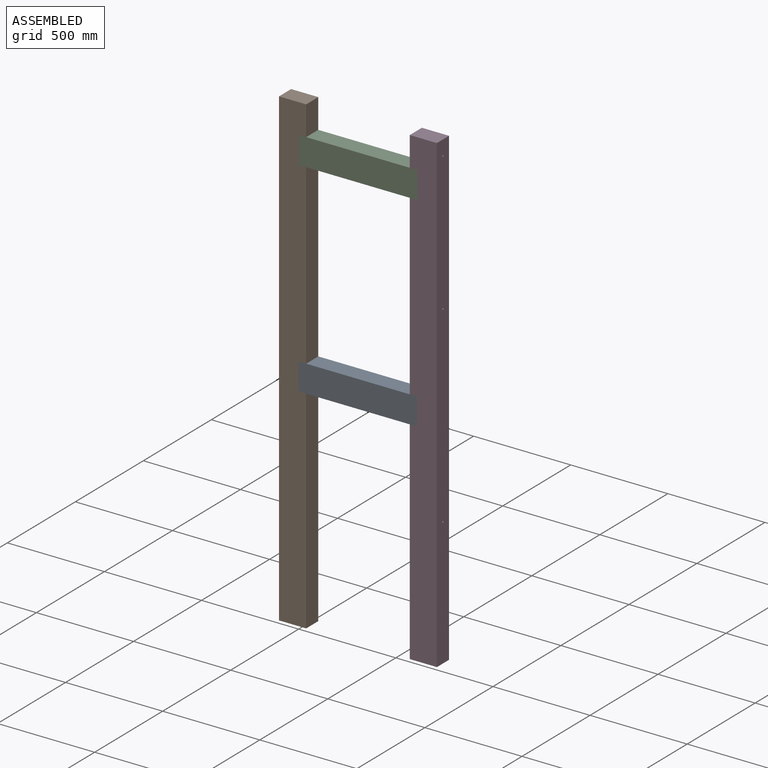
[diagram: assembled view]
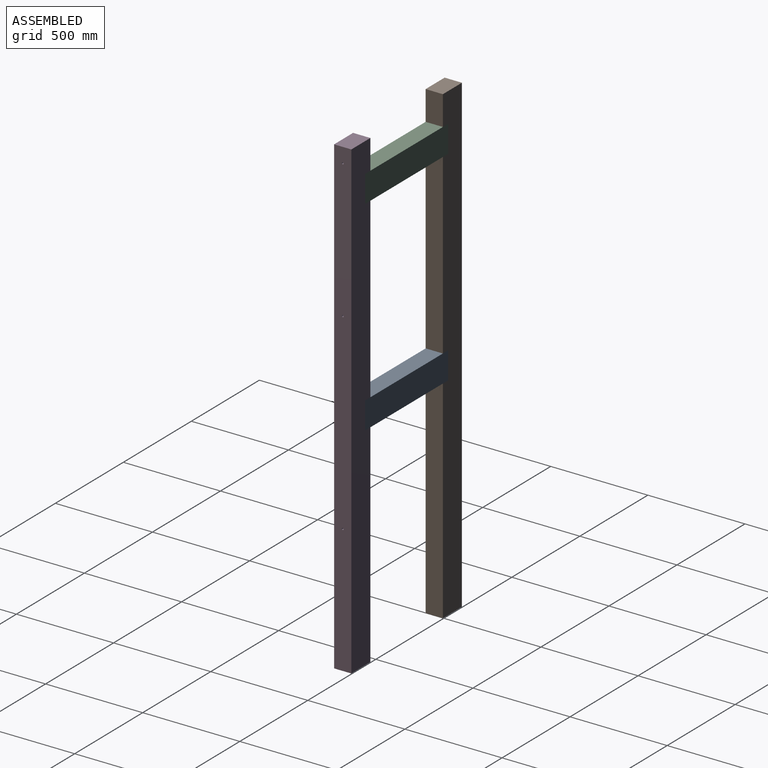
[diagram: assembled view, second angle]
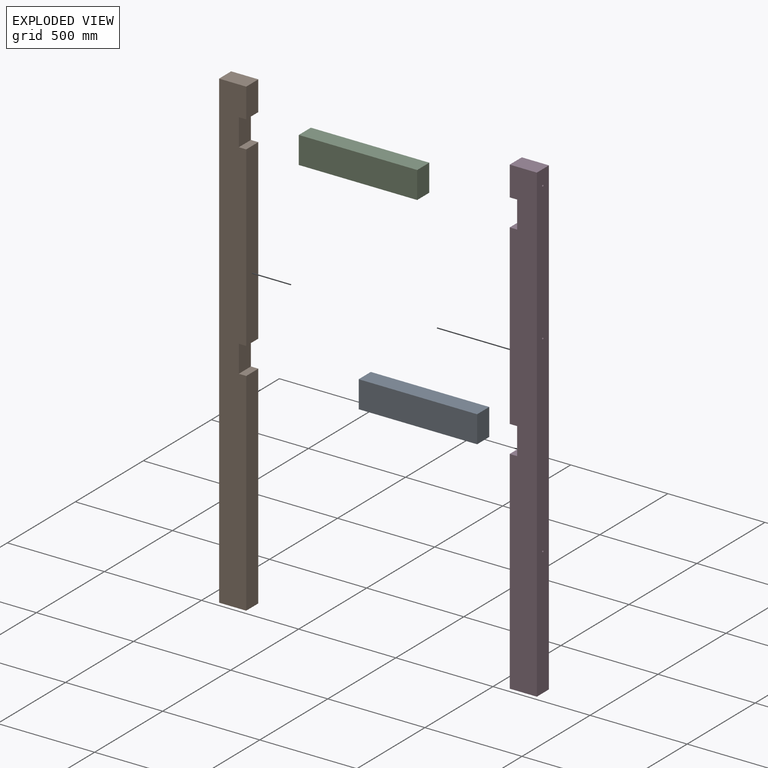
[diagram: exploded view]
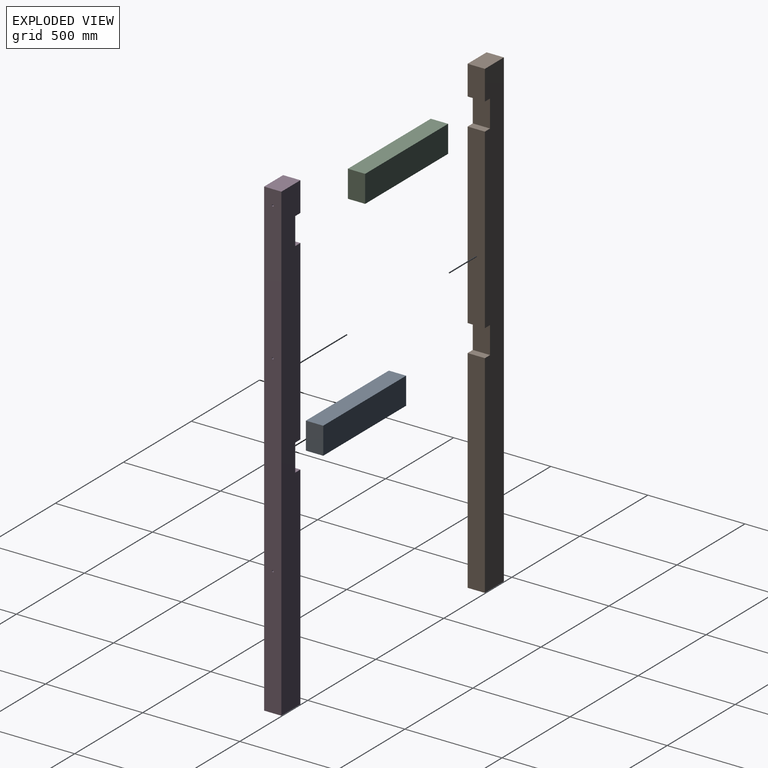
[diagram: exploded view, second angle]
ASSEMBLY  parts=4 mates=3
PART A: 6 faces, bbox 139.7x88.9x609.6 mm
  f0: plane 609.6x88.9mm, normal (1,0,0), area 54193.4mm2, adj f1,f3,f4,f5
  f1: plane 609.6x139.7mm, normal (0,1,0), area 85161.1mm2, adj f0,f2,f4,f5
  f2: plane 609.6x88.9mm, normal (-1,0,0), area 54193.4mm2, adj f1,f3,f4,f5
  f3: plane 609.6x139.7mm, normal (0,-1,0), area 85161.1mm2, adj f0,f2,f4,f5
  f4: plane 139.7x88.9mm, normal (0,0,1), area 12419.3mm2, adj f0,f1,f2,f3
  f5: plane 139.7x88.9mm, normal (0,0,-1), area 12419.3mm2, adj f0,f1,f2,f3
PART B: 20 faces, bbox 139.7x88.9x2438.4 mm
  f0: plane 152.4x88.9mm, normal (1,0,0), area 13548.4mm2, adj f2,f4,f6,f11
  f1: plane 914.4x88.9mm, normal (1,0,0), area 81290.2mm2, adj f2,f4,f8,f12
  f2: plane 2438.4x139.7mm, normal (0,-1,0), area 329999.3mm2, adj f0,f1,f3,f5,f6,f7,f8,f9
  f3: plane 1092.2x88.9mm, normal (1,0,0), area 97096.6mm2, adj f2,f4,f7,f9
  f4: plane 2438.4x139.7mm, normal (0,1,0), area 329999.3mm2, adj f0,f1,f3,f5,f6,f7,f8,f9
  f5: plane 2438.4x88.9mm, normal (-1,0,0), area 216560mm2, adj f2,f4,f6,f7,f14,f16,f18
  f6: plane 139.7x88.9mm, normal (0,0,1), area 12419.3mm2, adj f0,f2,f4,f5
  f7: plane 139.7x88.9mm, normal (0,0,-1), area 12419.3mm2, adj f2,f3,f4,f5
  f8: plane 88.9x38.1mm, normal (0,0,-1), area 3387.1mm2, adj f1,f2,f4,f10
  f9: plane 88.9x38.1mm, normal (0,0,1), area 3387.1mm2, adj f2,f3,f4,f10
  f10: plane 139.7x88.9mm, normal (1,0,0), area 12419.3mm2, adj f2,f4,f8,f9
  f11: plane 88.9x38.1mm, normal (0,0,-1), area 3387.1mm2, adj f0,f2,f4,f13
  f12: plane 88.9x38.1mm, normal (0,0,1), area 3387.1mm2, adj f1,f2,f4,f13
  f13: plane 139.7x88.9mm, normal (1,0,0), area 12419.3mm2, adj f2,f4,f11,f12
  f14: cylinder r=4.76mm len=25.4mm, axis (-1,0,0), area 760.1mm2, adj f5,f15
  f15: plane 9.53x9.53mm, normal (-1,0,0), area 71.3mm2, adj f14
  f16: cylinder r=4.76mm len=25.4mm, axis (-1,0,0), area 760.1mm2, adj f5,f17
  f17: plane 9.53x9.53mm, normal (-1,0,0), area 71.3mm2, adj f16
  f18: cylinder r=4.76mm len=25.4mm, axis (-1,0,0), area 760.1mm2, adj f5,f19
  f19: plane 9.53x9.53mm, normal (-1,0,0), area 71.3mm2, adj f18
PART C: same geometry as A
PART D: same geometry as B
PLACE A rot(axis=(-0.71,0,0.71),180deg) t=(336.55,0,-57.15)mm
PLACE B at identity fixed
PLACE C rot(axis=(-0.71,0,0.71),180deg) t=(336.55,0,996.95)mm
PLACE D rot(axis=(0,0,1),180deg) t=(673.1,0,0)mm
MATE fastened C.f4 <-> B.f13  axis (-1,0,0) through (31.75,0,996.95)mm
MATE fastened D.f13 <-> C.f5  axis (-1,0,0) through (641.35,0,996.95)mm
MATE fastened A.f4 <-> B.f10  axis (-1,0,0) through (31.75,0,-57.15)mm
